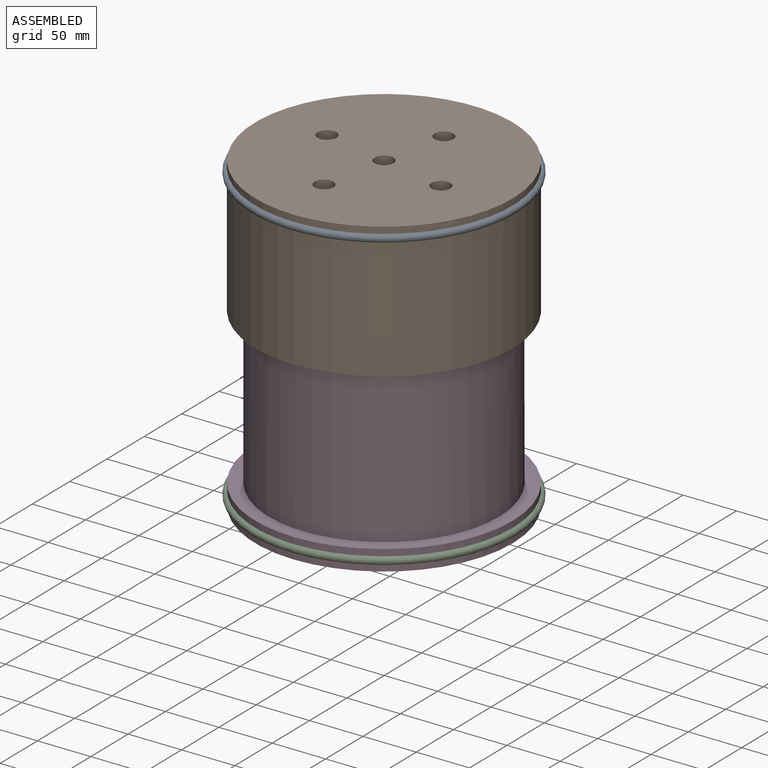
[diagram: assembled view]
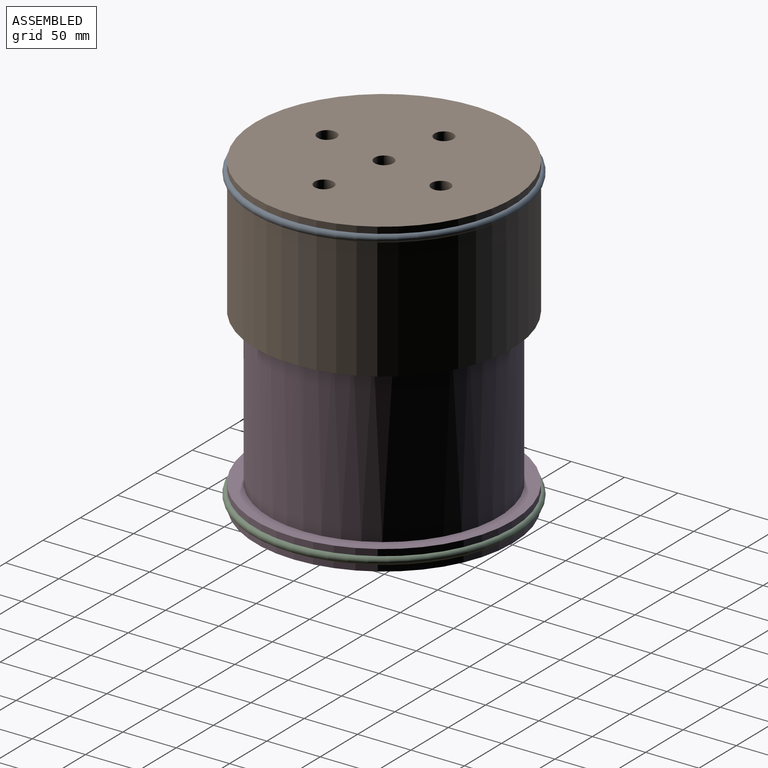
[diagram: assembled view, second angle]
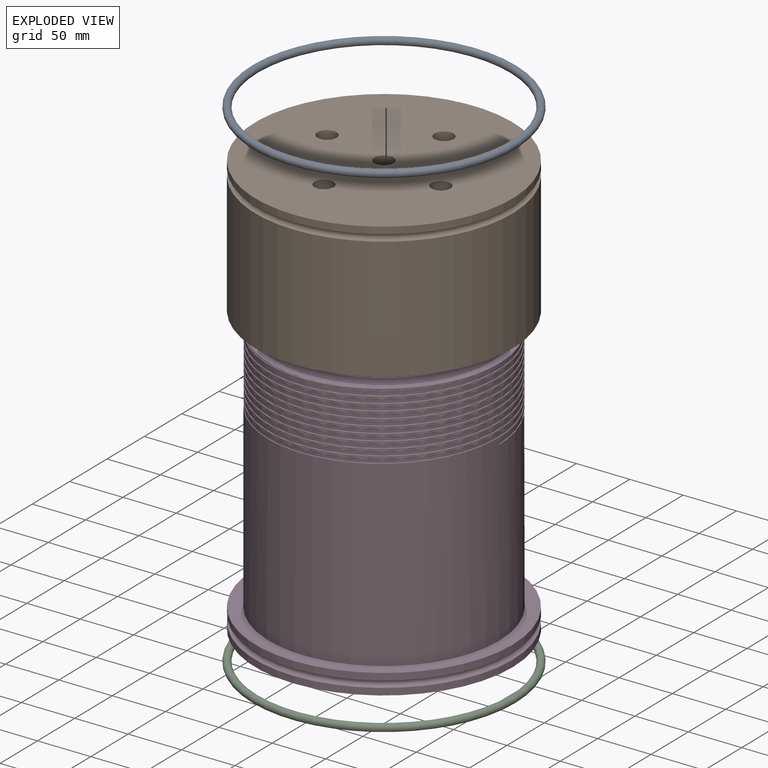
[diagram: exploded view]
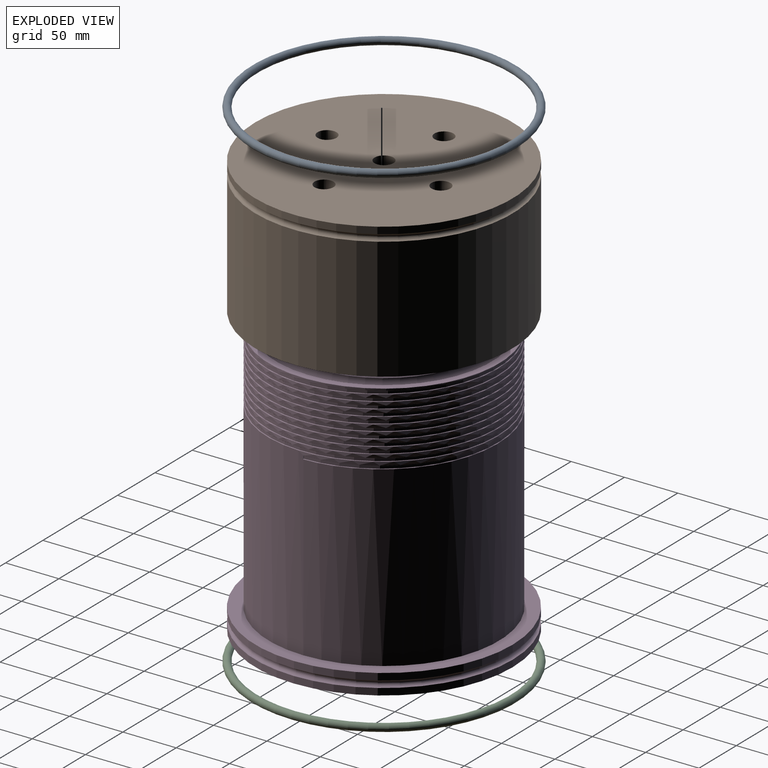
[diagram: exploded view, second angle]
ASSEMBLY  parts=4 mates=6
PART A: 1 faces, bbox 268.7x268.7x7 mm
  f0: torus R=120.65mm, axis (0,0,1), area 16635mm2
PART B: 32 faces, bbox 269x269x132.7 mm
  f0: cylinder r=2.38mm len=21.31mm, axis (0,0,1), area 318.8mm2, adj f1,f26
  f1: cone r=3.97mm half-angle=60deg, axis (0,0,1), area 36.6mm2, adj f0,f3
  f2: cylinder r=8.89mm len=17.78mm, axis (0,0,1), area 886.7mm2, adj f3,f16
  f3: plane 17.78x17.78mm, normal (0,0,1), area 198.8mm2, adj f1,f2
  f4: cylinder r=2.38mm len=21.31mm, axis (0,0,1), area 318.8mm2, adj f5,f26
  f5: cone r=3.97mm half-angle=60deg, axis (0,0,1), area 36.6mm2, adj f4,f7
  f6: cylinder r=8.89mm len=17.78mm, axis (0,0,1), area 886.7mm2, adj f7,f16
  f7: plane 17.78x17.78mm, normal (0,0,1), area 198.8mm2, adj f5,f6
  f8: cylinder r=2.38mm len=21.31mm, axis (0,0,1), area 318.8mm2, adj f9,f26
  f9: cone r=3.97mm half-angle=60deg, axis (0,0,1), area 36.6mm2, adj f8,f11
  f10: cylinder r=8.89mm len=17.78mm, axis (0,0,1), area 886.7mm2, adj f11,f16
  f11: plane 17.78x17.78mm, normal (0,0,1), area 198.8mm2, adj f9,f10
  f12: cylinder r=2.38mm len=21.31mm, axis (0,0,1), area 318.8mm2, adj f13,f26
  f13: cone r=3.97mm half-angle=60deg, axis (0,0,1), area 36.6mm2, adj f12,f15
  f14: cylinder r=8.89mm len=17.78mm, axis (0,0,1), area 886.7mm2, adj f15,f16
  f15: plane 17.78x17.78mm, normal (0,0,1), area 198.8mm2, adj f13,f14
  f16: plane 241.3x241.3mm, normal (0,0,1), area 44488.9mm2, adj f2,f6,f10,f14,f17,f28
  f17: cylinder r=120.65mm len=241.3mm, axis (0,0,-1), area 4813.7mm2, adj f16,f18
  f18: torus R=120.65mm, axis (0,0,-1), area 7434.7mm2, adj f17,f19
  f19: cylinder r=120.65mm len=241.3mm, axis (0,0,-1), area 86647mm2, adj f18,f20
  f20: plane 244.24x244.24mm, normal (0,0,-1), area 8083.4mm2, adj f19,f23,f24,f25
  f21: plane 6.62x3.78mm, normal (0,-1,0), area 17.7mm2, adj f22,f23,f24,f25,f27
  f22: bspline ~247.47x214.31mm, area 368.9mm2, adj f21,f23,f27
  f23: bspline ~255.09x220.91mm, area 31795.7mm2, adj f20,f21,f22,f24,f25
  f24: cylinder r=110.46mm len=220.91mm, axis (0,0,1), area 20694.1mm2, adj f20,f21,f23,f25
  f25: bspline ~255.09x220.91mm, area 30071.3mm2, adj f20,f21,f23,f24
  f26: plane 213.36x213.36mm, normal (0,0,-1), area 35664.2mm2, adj f0,f4,f8,f12,f27,f31
  f27: cylinder r=106.68mm len=213.36mm, axis (0,0,-1), area 8930.2mm2, adj f21,f22,f26
  f28: cylinder r=8.89mm len=17.78mm, axis (0,0,1), area 886.7mm2, adj f16,f29
  f29: plane 17.78x17.78mm, normal (0,0,1), area 198.8mm2, adj f28,f30
  f30: cone r=3.97mm half-angle=60deg, axis (0,0,1), area 36.6mm2, adj f29,f31
  f31: cylinder r=2.38mm len=21.31mm, axis (0,0,1), area 318.8mm2, adj f26,f30
PART C: same geometry as A
PART D: 25 faces, bbox 266.4x266.4x258.8 mm
  f0: cylinder r=107.95mm len=215.9mm, axis (0,0,-1), area 115799mm2, adj f10,f16,f21,f22,f24
  f1: cylinder r=107.95mm len=215.9mm, axis (0,0,-1), area 1303.9mm2, adj f2,f15,f22,f24
  f2: cylinder r=107.95mm len=215.9mm, axis (0,0,-1), area 2135.3mm2, adj f1,f3,f22,f24
  f3: cylinder r=107.95mm len=215.9mm, axis (0,0,-1), area 2132.9mm2, adj f2,f4,f22,f24
  f4: cylinder r=107.95mm len=215.9mm, axis (0,0,-1), area 2132.1mm2, adj f3,f5,f22,f24
  f5: cylinder r=107.95mm len=215.9mm, axis (0,0,-1), area 2133.8mm2, adj f4,f6,f22,f24
  f6: cylinder r=107.95mm len=215.9mm, axis (0,0,-1), area 2135.7mm2, adj f5,f7,f22,f24
  f7: cylinder r=107.95mm len=215.9mm, axis (0,0,-1), area 2135.3mm2, adj f6,f8,f22,f24
  f8: cylinder r=107.95mm len=215.9mm, axis (0,0,-1), area 2134.5mm2, adj f7,f9,f22,f24
  f9: cylinder r=107.95mm len=215.9mm, axis (0,0,-1), area 2135mm2, adj f8,f10,f22,f24
  f10: cylinder r=107.95mm len=215.9mm, axis (0,0,-1), area 2135.9mm2, adj f0,f9,f22,f24
  f11: plane 165.1x165.1mm, normal (0,0,1), area 21408.4mm2, adj f12
  f12: cylinder r=82.55mm len=228.6mm, axis (0,0,-1), area 118569.6mm2, adj f11,f13
  f13: plane 177.8x177.8mm, normal (0,0,1), area 3420.3mm2, adj f12,f14
  f14: torus R=95.25mm, axis (0,0,-1), area 11939mm2, adj f13,f15
  f15: plane 215.62x215.62mm, normal (0,0,1), area 4005mm2, adj f1,f14,f22,f23,f24
  f16: plane 241.3x241.3mm, normal (0,0,1), area 9120.7mm2, adj f0,f17
  f17: cylinder r=120.65mm len=241.3mm, axis (0,0,-1), area 4813.7mm2, adj f16,f18
  f18: torus R=120.65mm, axis (0,0,-1), area 7434.7mm2, adj f17,f19
  f19: cylinder r=120.65mm len=241.3mm, axis (0,0,-1), area 4813.7mm2, adj f18,f20
  f20: plane 241.3x241.3mm, normal (0,0,-1), area 45730.3mm2, adj f19
  f21: plane 3.2x0.57mm, normal (0,1,0), area 1.6mm2, adj f0,f22,f23,f24
  f22: bspline ~254.03x220mm, area 4856.7mm2, adj f0,f1,f2,f3,f4,f5,f6,f7
  f23: cylinder r=107.38mm len=214.75mm, axis (0,0,1), area 18768.1mm2, adj f15,f21,f22,f24
  f24: bspline ~254.03x220mm, area 4658.3mm2, adj f0,f1,f2,f3,f4,f5,f6,f7
PLACE A rot(axis=(0,0,-1),11.5deg) t=(-2.4,253.09,169.92)mm
PLACE B rot(axis=(0,0,-1),101.5deg) t=(-2.4,253.09,52.44)mm
PLACE C t=(-2.4,253.09,-103.13)mm
PLACE D t=(-2.4,253.09,-112.66)mm fixed
MATE fastened C.f0 <-> D.f0  axis (0,0,1) through (-2.4,253.09,-103.13)mm
MATE fastened A.f0 <-> B.f17  axis (0,0,1) through (-2.4,253.09,169.92)mm
MATE cylindrical C.f0 <-> D.f0  axis (0,0,1) through (-2.4,253.09,-103.13)mm
MATE cylindrical A.f0 <-> B.f17  axis (0,0,1) through (-2.4,253.09,169.92)mm
MATE cylindrical B.f17 <-> D.f0  axis (0,0,-1) through (-2.4,253.09,141.34)mm
MATE planar B.f17 <-> D.f0  axis (0,0,-1) through (-2.4,253.09,141.34)mm
